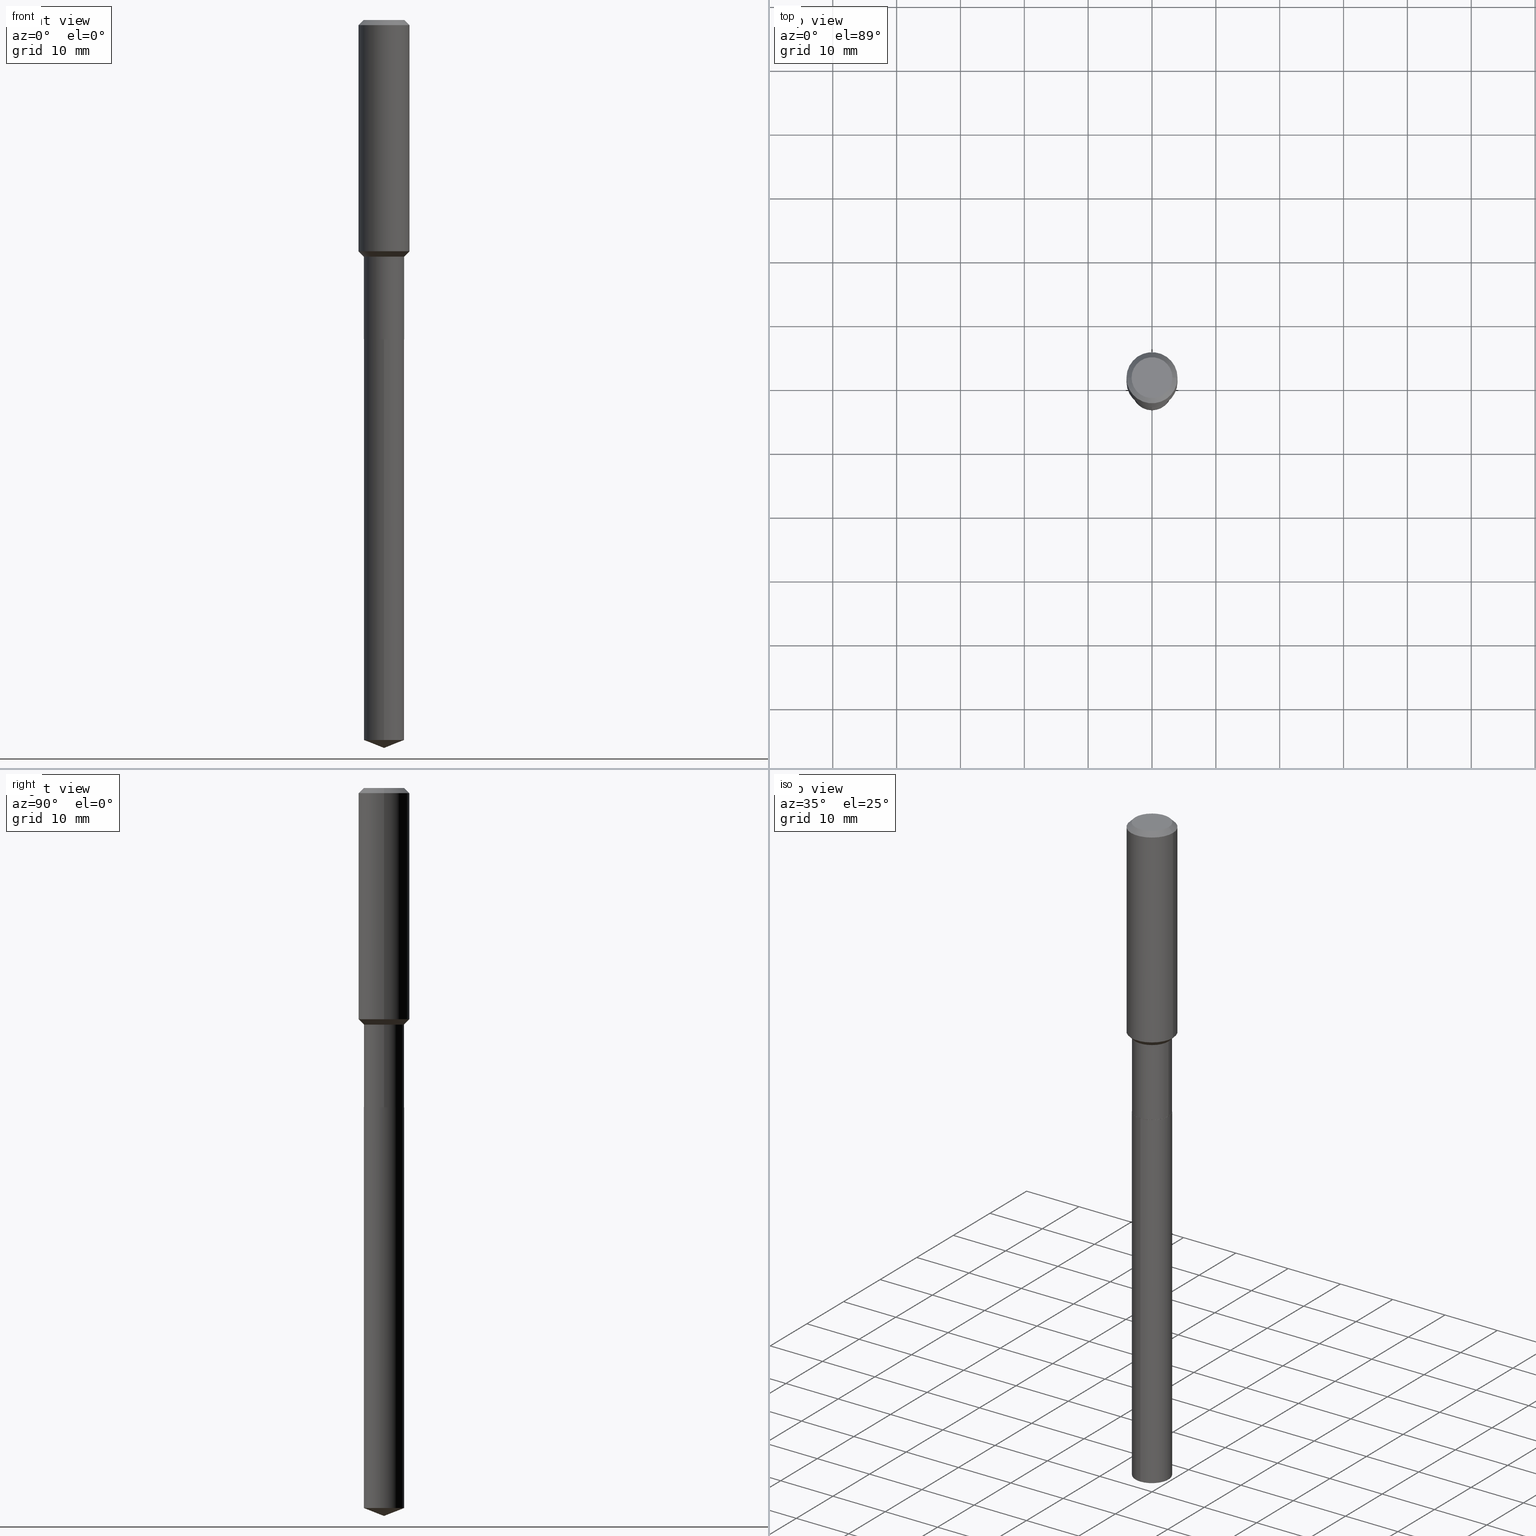
[diagram: canonical four-view strip — front | top / right | iso, engineering-drawing reading convention]
A machine part, canonical four-view strip (front | top / right | iso — engineering-drawing reading convention). The complete STEP part file that produces these views, byte-faithful:
ISO-10303-21;
HEADER;
FILE_DESCRIPTION (( 'STEP AP203' ),
    '1' );
FILE_NAME ('66639.STEP',
    '2024-04-25T02:36:24',
    ( '' ),
    ( '' ),
    'SwSTEP 2.0',
    'SolidWorks 2023',
    '' );
FILE_SCHEMA (( 'CONFIG_CONTROL_DESIGN' ));
ENDSEC;

DATA;
#1 = ORIENTED_EDGE ( 'NONE', *, *, #284, .F. ) ;
#2 = ORIENTED_EDGE ( 'NONE', *, *, #482, .T. ) ;
#3 = ORIENTED_EDGE ( 'NONE', *, *, #95, .F. ) ;
#4 = APPROVAL ( #422, 'UNSPECIFIED' ) ;
#5 = FACE_OUTER_BOUND ( 'NONE', #340, .T. ) ;
#6 = APPROVAL_PERSON_ORGANIZATION ( #461, #312, #383 ) ;
#7 = CARTESIAN_POINT ( 'NONE',  ( 0.1239999999999999991, -7.737122646876408317E-15, -1.968000000000000194 ) ) ;
#8 = DESIGN_CONTEXT ( 'detailed design', #354, 'design' ) ;
#9 = AXIS2_PLACEMENT_3D ( 'NONE', #43, #272, #190 ) ;
#10 = VERTEX_POINT ( 'NONE', #204 ) ;
#11 = DIRECTION ( 'NONE',  ( 1.000000000000000000, -6.982962677686267499E-15, 0.000000000000000000 ) ) ;
#12 = PLANE ( 'NONE',  #121 ) ;
#13 = PERSON_AND_ORGANIZATION_ROLE ( 'design_supplier' ) ;
#14 = CARTESIAN_POINT ( 'NONE',  ( 7.703226739483228723E-31, -1.099816621735597661E-16, -0.03150000000000019451 ) ) ;
#15 =( CONVERSION_BASED_UNIT ( 'INCH', #209 ) LENGTH_UNIT ( ) NAMED_UNIT ( #425 ) );
#16 = AXIS2_PLACEMENT_3D ( 'NONE', #485, #366, #480 ) ;
#17 = FACE_OUTER_BOUND ( 'NONE', #155, .T. ) ;
#18 = CONICAL_SURFACE ( 'NONE', #456, 0.1239999999999999297, 0.7853981633974508325 ) ;
#19 = FACE_OUTER_BOUND ( 'NONE', #246, .T. ) ;
#20 = EDGE_CURVE ( 'NONE', #443, #221, #210, .T. ) ;
#21 = APPLICATION_PROTOCOL_DEFINITION ( 'international standard', 'config_control_design', 1994, #454 ) ;
#22 = DIRECTION ( 'NONE',  ( 1.000000000000000000, -6.982962677686265922E-15, 0.000000000000000000 ) ) ;
#23 = EDGE_CURVE ( 'NONE', #74, #207, #115, .T. ) ;
#24 = CARTESIAN_POINT ( 'NONE',  ( 3.485771236336294004E-29, -4.976757500387020378E-15, -1.425400000000000000 ) ) ;
#25 = CARTESIAN_POINT ( 'NONE',  ( -8.529991786413033970E-28, 1.217931928410080037E-13, 34.88187874015748235 ) ) ;
#26 = VECTOR ( 'NONE', #324, 39.37007874015748143 ) ;
#27 = LOCAL_TIME ( 22, 36, 24.00000000000000000, #199 ) ;
#28 = CC_DESIGN_SECURITY_CLASSIFICATION ( #46, ( #93 ) ) ;
#29 = DIRECTION ( 'NONE',  ( 1.000000000000000000, -6.982962677686267499E-15, 0.000000000000000000 ) ) ;
#30 = CARTESIAN_POINT ( 'NONE',  ( 1.085612817581790466E-28, -1.550017788218010837E-14, -4.439355101023747530 ) ) ;
#31 = ORIENTED_EDGE ( 'NONE', *, *, #20, .T. ) ;
#32 = ORIENTED_EDGE ( 'NONE', *, *, #298, .T. ) ;
#33 = COORDINATED_UNIVERSAL_TIME_OFFSET ( 5, 0, .BEHIND. ) ;
#34 = DIRECTION ( 'NONE',  ( -2.445468806185136597E-29, 3.491481338843145583E-15, 1.000000000000000000 ) ) ;
#35 = ORIENTED_EDGE ( 'NONE', *, *, #460, .F. ) ;
#36 = CARTESIAN_POINT ( 'NONE',  ( -4.719860820353100843E-47, 6.738710358733633822E-33, 1.930043355456229866E-18 ) ) ;
#37 = CONICAL_SURFACE ( 'NONE', #122, 0.1575000000000000011, 0.7853981633974449483 ) ;
#38 = VERTEX_POINT ( 'NONE', #380 ) ;
#39 = CIRCLE ( 'NONE', #322, 0.1239999999999999297 ) ;
#40 = EDGE_CURVE ( 'NONE', #367, #368, #386, .T. ) ;
#41 = ORIENTED_EDGE ( 'NONE', *, *, #390, .T. ) ;
#42 = ORIENTED_EDGE ( 'NONE', *, *, #57, .T. ) ;
#43 = CARTESIAN_POINT ( 'NONE',  ( 3.567694441343496008E-29, -5.093722125238265850E-15, -1.458900000000000086 ) ) ;
#44 = FACE_OUTER_BOUND ( 'NONE', #187, .T. ) ;
#45 = AXIS2_PLACEMENT_3D ( 'NONE', #80, #278, #423 ) ;
#46 = SECURITY_CLASSIFICATION ( '', '', #429 ) ;
#47 = DIRECTION ( 'NONE',  ( -1.000000000000000000, 6.982962677686265922E-15, -4.876176775795935793E-29 ) ) ;
#48 = DATE_TIME_ROLE ( 'classification_date' ) ;
#49 = ADVANCED_FACE ( 'NONE', ( #17 ), #54, .T. ) ;
#50 = ADVANCED_FACE ( 'NONE', ( #44 ), #99, .T. ) ;
#51 = DIRECTION ( 'NONE',  ( -2.445397477310179660E-29, 3.491583485851871163E-15, 1.000000000000000000 ) ) ;
#52 = CIRCLE ( 'NONE', #282, 0.1239999999999999991 ) ;
#53 = DIRECTION ( 'NONE',  ( -2.445397477310179660E-29, 3.491583485851871163E-15, 1.000000000000000000 ) ) ;
#54 = CYLINDRICAL_SURFACE ( 'NONE', #307, 0.1239999999999999991 ) ;
#55 = ADVANCED_FACE ( 'NONE', ( #5 ), #12, .F. ) ;
#56 = ORIENTED_EDGE ( 'NONE', *, *, #388, .T. ) ;
#57 = EDGE_CURVE ( 'NONE', #74, #367, #392, .T. ) ;
#58 = DIRECTION ( 'NONE',  ( -6.982962677686265922E-15, -1.000000000000000000, 4.406206441393973340E-15 ) ) ;
#59 = LOCAL_TIME ( 22, 36, 24.00000000000000000, #201 ) ;
#60 = LINE ( 'NONE', #484, #178 ) ;
#61 = CARTESIAN_POINT ( 'NONE',  ( 4.813905344975441835E-29, -6.872981015512731707E-15, -1.968500000000000139 ) ) ;
#62 = ADVANCED_FACE ( 'NONE', ( #208 ), #463, .T. ) ;
#63 = LINE ( 'NONE', #323, #238 ) ;
#64 = CARTESIAN_POINT ( 'NONE',  ( 4.813905344975441835E-29, -6.872981015512731707E-15, -1.968500000000000139 ) ) ;
#65 = ORIENTED_EDGE ( 'NONE', *, *, #404, .F. ) ;
#66 = FACE_OUTER_BOUND ( 'NONE', #98, .T. ) ;
#67 = CIRCLE ( 'NONE', #488, 0.1234999999999999987 ) ;
#68 = PERSON_AND_ORGANIZATION_ROLE ( 'design_owner' ) ;
#69 = DIRECTION ( 'NONE',  ( 1.000000000000000000, -6.982962677686266711E-15, 0.000000000000000000 ) ) ;
#70 = EDGE_CURVE ( 'NONE', #147, #457, #313, .T. ) ;
#71 = ORIENTED_EDGE ( 'NONE', *, *, #428, .T. ) ;
#72 = EDGE_CURVE ( 'NONE', #207, #74, #67, .T. ) ;
#73 = ORIENTED_EDGE ( 'NONE', *, *, #23, .F. ) ;
#74 = VERTEX_POINT ( 'NONE', #274 ) ;
#75 = AXIS2_PLACEMENT_3D ( 'NONE', #258, #34, #362 ) ;
#76 = CIRCLE ( 'NONE', #448, 0.1575000000000001676 ) ;
#77 = ORIENTED_EDGE ( 'NONE', *, *, #40, .F. ) ;
#78 = ORIENTED_EDGE ( 'NONE', *, *, #57, .F. ) ;
#79 = CYLINDRICAL_SURFACE ( 'NONE', #432, 0.1575000000000000844 ) ;
#80 = CARTESIAN_POINT ( 'NONE',  ( 4.812682610572349594E-29, -6.871235274843310993E-15, -1.968000000000000194 ) ) ;
#81 = VERTEX_POINT ( 'NONE', #163 ) ;
#82 = EDGE_CURVE ( 'NONE', #457, #147, #343, .T. ) ;
#83 = CC_DESIGN_PERSON_AND_ORGANIZATION_ASSIGNMENT ( #280, #129, ( #93 ) ) ;
#84 = APPROVAL_STATUS ( 'not_yet_approved' ) ;
#85 = CARTESIAN_POINT ( 'NONE',  ( 0.000000000000000000, 0.000000000000000000, 0.000000000000000000 ) ) ;
#86 = CIRCLE ( 'NONE', #45, 0.1239999999999999991 ) ;
#87 = AXIS2_PLACEMENT_3D ( 'NONE', #249, #254, #290 ) ;
#88 = PRODUCT_DEFINITION ( 'UNKNOWN', '', #93, #8 ) ;
#89 = FACE_OUTER_BOUND ( 'NONE', #415, .T. ) ;
#90 = CARTESIAN_POINT ( 'NONE',  ( 3.567694441343496008E-29, -5.093722125238265850E-15, -1.458900000000000086 ) ) ;
#91 = PERSON_AND_ORGANIZATION_ROLE ( 'classification_officer' ) ;
#92 = CC_DESIGN_DATE_AND_TIME_ASSIGNMENT ( #205, #48, ( #46 ) ) ;
#93 = PRODUCT_DEFINITION_FORMATION_WITH_SPECIFIED_SOURCE ( 'ANY', '', #131, .NOT_KNOWN. ) ;
#94 = DIRECTION ( 'NONE',  ( 1.000000000000000000, -6.982962677686265922E-15, 4.876281427513067258E-29 ) ) ;
#95 = EDGE_CURVE ( 'NONE', #367, #112, #86, .T. ) ;
#96 = DIRECTION ( 'NONE',  ( 1.000000000000000000, -6.982962677686265922E-15, 0.000000000000000000 ) ) ;
#97 = DIRECTION ( 'NONE',  ( -2.445468806185136877E-29, 3.491481338843145188E-15, 1.000000000000000000 ) ) ;
#98 = EDGE_LOOP ( 'NONE', ( #341, #144, #486, #110 ) ) ;
#99 = CONICAL_SURFACE ( 'NONE', #200, 0.1239999999999999297, 0.7853981633974508325 ) ;
#100 = CIRCLE ( 'NONE', #478, 0.1575000000000000011 ) ;
#101 = DIRECTION ( 'NONE',  ( -2.445397477310179660E-29, 3.491583485851871163E-15, 1.000000000000000000 ) ) ;
#102 = CC_DESIGN_PERSON_AND_ORGANIZATION_ASSIGNMENT ( #166, #13, ( #93 ) ) ;
#103 = LINE ( 'NONE', #250, #168 ) ;
#104 = FACE_OUTER_BOUND ( 'NONE', #156, .T. ) ;
#105 = DIRECTION ( 'NONE',  ( -2.445468806185136597E-29, 3.491481338843145583E-15, 1.000000000000000000 ) ) ;
#106 = ORIENTED_EDGE ( 'NONE', *, *, #427, .T. ) ;
#107 = DIRECTION ( 'NONE',  ( -2.445468806185136877E-29, 3.491481338843145188E-15, 1.000000000000000000 ) ) ;
#108 = CARTESIAN_POINT ( 'NONE',  ( 3.567694441343496008E-29, -5.093722125238265850E-15, -1.458900000000000086 ) ) ;
#109 = LOCAL_TIME ( 22, 36, 24.00000000000000000, #352 ) ;
#110 = ORIENTED_EDGE ( 'NONE', *, *, #268, .F. ) ;
#111 = ADVANCED_FACE ( 'NONE', ( #89 ), #124, .T. ) ;
#112 = VERTEX_POINT ( 'NONE', #426 ) ;
#113 = ORIENTED_EDGE ( 'NONE', *, *, #72, .F. ) ;
#114 = MECHANICAL_CONTEXT ( 'NONE', #454, 'mechanical' ) ;
#115 = CIRCLE ( 'NONE', #251, 0.1234999999999999987 ) ;
#116 = ORIENTED_EDGE ( 'NONE', *, *, #390, .F. ) ;
#117 = ORIENTED_EDGE ( 'NONE', *, *, #403, .T. ) ;
#118 = DATE_AND_TIME ( #450, #219 ) ;
#119 = DIRECTION ( 'NONE',  ( 1.000000000000000000, -6.982962677686265922E-15, 4.876281427513067258E-29 ) ) ;
#120 = ADVANCED_FACE ( 'NONE', ( #393 ), #262, .T. ) ;
#121 = AXIS2_PLACEMENT_3D ( 'NONE', #198, #315, #158 ) ;
#122 = AXIS2_PLACEMENT_3D ( 'NONE', #361, #326, #336 ) ;
#123 = DIRECTION ( 'NONE',  ( -0.7071067811865493491, 7.493145998870360471E-15, 0.7071067811865457964 ) ) ;
#124 = CYLINDRICAL_SURFACE ( 'NONE', #130, 0.1239999999999999575 ) ;
#125 = PERSON_AND_ORGANIZATION ( #430, #243 ) ;
#126 = LINE ( 'NONE', #134, #350 ) ;
#127 = DIRECTION ( 'NONE',  ( -2.445468806185136597E-29, 3.491481338843145583E-15, 1.000000000000000000 ) ) ;
#128 = EDGE_CURVE ( 'NONE', #181, #10, #183, .T. ) ;
#129 = PERSON_AND_ORGANIZATION_ROLE ( 'creator' ) ;
#130 = AXIS2_PLACEMENT_3D ( 'NONE', #279, #283, #467 ) ;
#131 = PRODUCT ( '66639', '66639', '', ( #114 ) ) ;
#132 = AXIS2_PLACEMENT_3D ( 'NONE', #61, #214, #22 ) ;
#133 = CARTESIAN_POINT ( 'NONE',  ( 4.813905344975441835E-29, -6.872981015512731707E-15, -1.968500000000000139 ) ) ;
#134 = CARTESIAN_POINT ( 'NONE',  ( 1.059404549109931292E-28, -1.621709356054687186E-14, -4.488199999999999079 ) ) ;
#135 = DIRECTION ( 'NONE',  ( -2.445397477310179660E-29, 3.491583485851871163E-15, 1.000000000000000000 ) ) ;
#136 = EDGE_CURVE ( 'NONE', #147, #10, #103, .T. ) ;
#137 = CYLINDRICAL_SURFACE ( 'NONE', #150, 0.1239999999999999575 ) ;
#138 = FACE_OUTER_BOUND ( 'NONE', #270, .T. ) ;
#139 = CARTESIAN_POINT ( 'NONE',  ( -0.1239999999999999297, -5.101405707698264197E-15, -1.458900000000000086 ) ) ;
#140 = DIRECTION ( 'NONE',  ( -0.7071067811865451302, 2.468850131082231817E-15, -0.7071067811865499042 ) ) ;
#141 = PLANE ( 'NONE',  #16 ) ;
#142 = ADVANCED_BREP_SHAPE_REPRESENTATION ( '66639', ( #398, #239, #420 ), #407 ) ;
#143 = ORIENTED_EDGE ( 'NONE', *, *, #471, .T. ) ;
#144 = ORIENTED_EDGE ( 'NONE', *, *, #284, .T. ) ;
#145 = DIRECTION ( 'NONE',  ( -2.445397477310179660E-29, 3.491583485851871163E-15, 1.000000000000000000 ) ) ;
#146 = DIRECTION ( 'NONE',  ( -2.445468806185136597E-29, 3.491481338843145583E-15, 1.000000000000000000 ) ) ;
#147 = VERTEX_POINT ( 'NONE', #394 ) ;
#148 = ADVANCED_FACE ( 'NONE', ( #220 ), #437, .T. ) ;
#149 = CIRCLE ( 'NONE', #228, 0.1239999999999999991 ) ;
#150 = AXIS2_PLACEMENT_3D ( 'NONE', #405, #146, #294 ) ;
#151 = ORIENTED_EDGE ( 'NONE', *, *, #82, .T. ) ;
#152 = ORIENTED_EDGE ( 'NONE', *, *, #70, .F. ) ;
#153 = EDGE_LOOP ( 'NONE', ( #152, #402, #483, #449 ) ) ;
#154 = VERTEX_POINT ( 'NONE', #260 ) ;
#155 = EDGE_LOOP ( 'NONE', ( #196, #412, #106, #338 ) ) ;
#156 = EDGE_LOOP ( 'NONE', ( #339, #455, #375, #335 ) ) ;
#157 = AXIS2_PLACEMENT_3D ( 'NONE', #175, #328, #477 ) ;
#158 = DIRECTION ( 'NONE',  ( 1.000000000000000000, -6.982962677686265922E-15, 4.876176775795935793E-29 ) ) ;
#159 = CARTESIAN_POINT ( 'NONE',  ( 0.1239999999999999297, -5.959609497271362386E-15, -1.458900000000000086 ) ) ;
#160 = VECTOR ( 'NONE', #436, 39.37007874015748143 ) ;
#161 = AXIS2_PLACEMENT_3D ( 'NONE', #255, #135, #445 ) ;
#162 = EDGE_CURVE ( 'NONE', #81, #38, #149, .T. ) ;
#163 = CARTESIAN_POINT ( 'NONE',  ( -8.658873720330487110E-16, -0.1240000000000068825, -1.968499999999999472 ) ) ;
#164 = PERSON_AND_ORGANIZATION ( #430, #243 ) ;
#165 = DIRECTION ( 'NONE',  ( -2.445468806185136597E-29, 3.491481338843145583E-15, 1.000000000000000000 ) ) ;
#166 = PERSON_AND_ORGANIZATION ( #430, #243 ) ;
#167 = DIRECTION ( 'NONE',  ( 2.445468806185136597E-29, -3.491481338843145583E-15, -1.000000000000000000 ) ) ;
#168 = VECTOR ( 'NONE', #435, 39.37007874015748143 ) ;
#169 = AXIS2_PLACEMENT_3D ( 'NONE', #186, #105, #475 ) ;
#170 =( NAMED_UNIT ( * ) PLANE_ANGLE_UNIT ( ) SI_UNIT ( $, .RADIAN. ) );
#171 = CARTESIAN_POINT ( 'NONE',  ( 4.813905344975440714E-29, -6.872981015512730918E-15, -1.968499999999999694 ) ) ;
#172 = LINE ( 'NONE', #434, #329 ) ;
#173 = DIRECTION ( 'NONE',  ( -6.982962677686265922E-15, -1.000000000000000000, 4.406206441393973340E-15 ) ) ;
#174 = CARTESIAN_POINT ( 'NONE',  ( 0.000000000000000000, 0.000000000000000000, 0.000000000000000000 ) ) ;
#175 = CARTESIAN_POINT ( 'NONE',  ( 4.812682610572349594E-29, -6.871235274843310993E-15, -1.968000000000000194 ) ) ;
#176 = CLOSED_SHELL ( 'NONE', ( #481, #245, #382, #50, #111, #256, #424, #211, #62, #347, #55, #276 ) ) ;
#177 = CARTESIAN_POINT ( 'NONE',  ( -0.1239999999999999575, 8.810729923425239283E-16, -6.099479511916081045E-30 ) ) ;
#178 = VECTOR ( 'NONE', #140, 39.37007874015748143 ) ;
#179 = FACE_OUTER_BOUND ( 'NONE', #292, .T. ) ;
#180 = CC_DESIGN_PERSON_AND_ORGANIZATION_ASSIGNMENT ( #188, #68, ( #131 ) ) ;
#181 = VERTEX_POINT ( 'NONE', #285 ) ;
#182 = DIRECTION ( 'NONE',  ( -0.7071067811866199593, 7.493145998870616062E-15, 0.7071067811864750752 ) ) ;
#183 = LINE ( 'NONE', #286, #160 ) ;
#184 = ADVANCED_FACE ( 'NONE', ( #360 ), #216, .T. ) ;
#185 = VERTEX_POINT ( 'NONE', #289 ) ;
#186 = CARTESIAN_POINT ( 'NONE',  ( 7.703226739483228723E-31, -1.099816621735597661E-16, -0.03150000000000019451 ) ) ;
#187 = EDGE_LOOP ( 'NONE', ( #194, #56, #116, #65 ) ) ;
#188 = PERSON_AND_ORGANIZATION ( #430, #243 ) ;
#189 = AXIS2_PLACEMENT_3D ( 'NONE', #241, #53, #281 ) ;
#190 = DIRECTION ( 'NONE',  ( 1.000000000000000000, -6.982962677686266711E-15, 0.000000000000000000 ) ) ;
#191 = VECTOR ( 'NONE', #310, 39.37007874015748143 ) ;
#192 = ORIENTED_EDGE ( 'NONE', *, *, #72, .T. ) ;
#193 = ADVANCED_FACE ( 'NONE', ( #179 ), #141, .F. ) ;
#194 = ORIENTED_EDGE ( 'NONE', *, *, #371, .T. ) ;
#195 = APPROVAL ( #487, 'UNSPECIFIED' ) ;
#196 = ORIENTED_EDGE ( 'NONE', *, *, #320, .F. ) ;
#197 = EDGE_LOOP ( 'NONE', ( #231, #31, #351 ) ) ;
#198 = CARTESIAN_POINT ( 'NONE',  ( -1.267370573314747964E-29, -1.558171425523435455E-14, -1.968499999999999694 ) ) ;
#199 = COORDINATED_UNIVERSAL_TIME_OFFSET ( 5, 0, .BEHIND. ) ;
#200 = AXIS2_PLACEMENT_3D ( 'NONE', #90, #387, #349 ) ;
#201 = COORDINATED_UNIVERSAL_TIME_OFFSET ( 5, 0, .BEHIND. ) ;
#202 = APPROVAL_DATE_TIME ( #468, #4 ) ;
#203 = CALENDAR_DATE ( 2024, 24, 4 ) ;
#204 = CARTESIAN_POINT ( 'NONE',  ( 0.1575000000000000011, -1.209798283909146741E-15, -0.03150000000000019451 ) ) ;
#205 = DATE_AND_TIME ( #203, #109 ) ;
#206 = DIRECTION ( 'NONE',  ( -2.445468806185136597E-29, 3.491481338843145583E-15, 1.000000000000000000 ) ) ;
#207 = VERTEX_POINT ( 'NONE', #331 ) ;
#208 = FACE_OUTER_BOUND ( 'NONE', #332, .T. ) ;
#209 = LENGTH_MEASURE_WITH_UNIT ( LENGTH_MEASURE( 0.02539999999999999897 ), #264 );
#210 = LINE ( 'NONE', #416, #242 ) ;
#211 = ADVANCED_FACE ( 'NONE', ( #19 ), #439, .T. ) ;
#212 = CIRCLE ( 'NONE', #252, 0.1575000000000001676 ) ;
#213 = DIRECTION ( 'NONE',  ( -2.445397477310179660E-29, 3.491583485851871163E-15, 1.000000000000000000 ) ) ;
#214 = DIRECTION ( 'NONE',  ( -2.445468806185136597E-29, 3.491481338843145583E-15, 1.000000000000000000 ) ) ;
#215 = DIRECTION ( 'NONE',  ( 1.000000000000000000, -6.982962677686266711E-15, 0.000000000000000000 ) ) ;
#216 = CYLINDRICAL_SURFACE ( 'NONE', #296, 0.1239999999999999991 ) ;
#217 = ORIENTED_EDGE ( 'NONE', *, *, #128, .F. ) ;
#218 = DIRECTION ( 'NONE',  ( -6.497071151882130091E-15, -0.9304175679820261280, 0.3665012267242928612 ) ) ;
#219 = LOCAL_TIME ( 22, 36, 24.00000000000000000, #33 ) ;
#220 = FACE_OUTER_BOUND ( 'NONE', #447, .T. ) ;
#221 = VERTEX_POINT ( 'NONE', #291 ) ;
#222 = APPLICATION_PROTOCOL_DEFINITION ( 'international standard', 'config_control_design', 1994, #354 ) ;
#223 = FACE_OUTER_BOUND ( 'NONE', #490, .T. ) ;
#224 = DATE_AND_TIME ( #411, #27 ) ;
#225 = CC_DESIGN_PERSON_AND_ORGANIZATION_ASSIGNMENT ( #164, #91, ( #46 ) ) ;
#226 = ORIENTED_EDGE ( 'NONE', *, *, #82, .F. ) ;
#227 = ORIENTED_EDGE ( 'NONE', *, *, #70, .T. ) ;
#228 = AXIS2_PLACEMENT_3D ( 'NONE', #64, #101, #58 ) ;
#229 = CARTESIAN_POINT ( 'NONE',  ( 7.703226739483228723E-31, -1.099816621735597661E-16, -0.03150000000000019451 ) ) ;
#230 = CONICAL_SURFACE ( 'NONE', #132, 0.1234999999999999987, 0.7853981633975507526 ) ;
#231 = ORIENTED_EDGE ( 'NONE', *, *, #403, .F. ) ;
#232 = ORIENTED_EDGE ( 'NONE', *, *, #298, .F. ) ;
#233 = APPROVAL_DATE_TIME ( #118, #195 ) ;
#234 = EDGE_CURVE ( 'NONE', #221, #363, #287, .T. ) ;
#235 = FACE_OUTER_BOUND ( 'NONE', #377, .T. ) ;
#236 = APPROVAL_DATE_TIME ( #346, #312 ) ;
#237 = AXIS2_PLACEMENT_3D ( 'NONE', #14, #167, #473 ) ;
#238 = VECTOR ( 'NONE', #440, 39.37007874015748143 ) ;
#239 = MANIFOLD_SOLID_BREP ( 'Body-Move/Copy2[2]', #176 ) ;
#240 = ORIENTED_EDGE ( 'NONE', *, *, #459, .T. ) ;
#241 = CARTESIAN_POINT ( 'NONE',  ( -8.529991786413033970E-28, 1.217931928410080037E-13, 34.88187874015748235 ) ) ;
#242 = VECTOR ( 'NONE', #433, 39.37007874015748143 ) ;
#243 = ORGANIZATION ( 'UNSPECIFIED', 'UNSPECIFIED', '' ) ;
#244 = CALENDAR_DATE ( 2024, 24, 4 ) ;
#245 = ADVANCED_FACE ( 'NONE', ( #334 ), #37, .T. ) ;
#246 = EDGE_LOOP ( 'NONE', ( #35, #71, #295, #232 ) ) ;
#247 = EDGE_CURVE ( 'NONE', #10, #154, #358, .T. ) ;
#248 = CARTESIAN_POINT ( 'NONE',  ( 0.1234999999999999987, -7.735376906206986025E-15, -1.968500000000000139 ) ) ;
#249 = CARTESIAN_POINT ( 'NONE',  ( 4.813905344975441835E-29, -6.872981015512731707E-15, -1.968500000000000139 ) ) ;
#250 = CARTESIAN_POINT ( 'NONE',  ( 0.1575000000000000011, -1.190510096822576026E-15, -0.03150000000000019451 ) ) ;
#251 = AXIS2_PLACEMENT_3D ( 'NONE', #342, #127, #96 ) ;
#252 = AXIS2_PLACEMENT_3D ( 'NONE', #24, #325, #29 ) ;
#253 = VECTOR ( 'NONE', #123, 39.37007874015748143 ) ;
#254 = DIRECTION ( 'NONE',  ( -2.445468806185136597E-29, 3.491481338843145583E-15, 1.000000000000000000 ) ) ;
#255 = CARTESIAN_POINT ( 'NONE',  ( 4.813905344975441835E-29, -6.872981015512731707E-15, -1.968500000000000139 ) ) ;
#256 = ADVANCED_FACE ( 'NONE', ( #66 ), #137, .T. ) ;
#257 = DIRECTION ( 'NONE',  ( -2.445468806185136597E-29, 3.491481338843145583E-15, 1.000000000000000000 ) ) ;
#258 = CARTESIAN_POINT ( 'NONE',  ( 0.000000000000000000, 0.000000000000000000, 0.000000000000000000 ) ) ;
#259 = EDGE_CURVE ( 'NONE', #38, #81, #438, .T. ) ;
#260 = CARTESIAN_POINT ( 'NONE',  ( -0.1575000000000000011, -1.424264772458131328E-15, -0.03150000000000019451 ) ) ;
#261 = ORIENTED_EDGE ( 'NONE', *, *, #460, .T. ) ;
#262 = CONICAL_SURFACE ( 'NONE', #189, 99.94676754584128275, 1.195550537616123954 ) ;
#263 = ORIENTED_EDGE ( 'NONE', *, *, #136, .F. ) ;
#264 =( LENGTH_UNIT ( ) NAMED_UNIT ( * ) SI_UNIT ( $, .METRE. ) );
#265 = DIRECTION ( 'NONE',  ( -2.445468806185136597E-29, 3.491481338843145583E-15, 1.000000000000000000 ) ) ;
#266 = PERSON_AND_ORGANIZATION ( #430, #243 ) ;
#267 = LINE ( 'NONE', #305, #191 ) ;
#268 = EDGE_CURVE ( 'NONE', #293, #368, #39, .T. ) ;
#269 = ORIENTED_EDGE ( 'NONE', *, *, #20, .F. ) ;
#270 = EDGE_LOOP ( 'NONE', ( #442, #431, #3, #78 ) ) ;
#271 = PERSON_AND_ORGANIZATION ( #430, #243 ) ;
#272 = DIRECTION ( 'NONE',  ( -2.445468806185136597E-29, 3.491481338843145583E-15, 1.000000000000000000 ) ) ;
#273 = CONICAL_SURFACE ( 'NONE', #87, 0.1234999999999999987, 0.7853981633975507526 ) ;
#274 = CARTESIAN_POINT ( 'NONE',  ( 0.1234999999999999987, -7.735376906206986025E-15, -1.968500000000000139 ) ) ;
#275 = EDGE_LOOP ( 'NONE', ( #41, #261, #410, #217 ) ) ;
#276 = ADVANCED_FACE ( 'NONE', ( #223 ), #230, .T. ) ;
#277 = APPROVAL_PERSON_ORGANIZATION ( #125, #4, #317 ) ;
#278 = DIRECTION ( 'NONE',  ( -2.445468806185136597E-29, 3.491481338843145583E-15, 1.000000000000000000 ) ) ;
#279 = CARTESIAN_POINT ( 'NONE',  ( 0.000000000000000000, 0.000000000000000000, 0.000000000000000000 ) ) ;
#280 = PERSON_AND_ORGANIZATION ( #430, #243 ) ;
#281 = DIRECTION ( 'NONE',  ( -6.982962677686265922E-15, -1.000000000000000000, 3.498627837349958469E-15 ) ) ;
#282 = AXIS2_PLACEMENT_3D ( 'NONE', #330, #145, #333 ) ;
#283 = DIRECTION ( 'NONE',  ( -2.445468806185136597E-29, 3.491481338843145583E-15, 1.000000000000000000 ) ) ;
#284 = EDGE_CURVE ( 'NONE', #112, #367, #314, .T. ) ;
#285 = CARTESIAN_POINT ( 'NONE',  ( 0.1575000000000001676, -6.076574122122608647E-15, -1.425400000000000000 ) ) ;
#286 = CARTESIAN_POINT ( 'NONE',  ( 0.1575000000000000844, -1.099816621735587677E-15, 7.679978421878603638E-30 ) ) ;
#287 = CIRCLE ( 'NONE', #413, 0.1239999999999999991 ) ;
#288 = LINE ( 'NONE', #177, #397 ) ;
#289 = CARTESIAN_POINT ( 'NONE',  ( -0.1575000000000001676, -3.857652691564860408E-15, -1.425400000000000000 ) ) ;
#290 = DIRECTION ( 'NONE',  ( 1.000000000000000000, -6.982962677686265922E-15, 0.000000000000000000 ) ) ;
#291 = CARTESIAN_POINT ( 'NONE',  ( 8.810729923426329884E-16, 0.1239999999999845254, -4.439355101023748418 ) ) ;
#292 = EDGE_LOOP ( 'NONE', ( #303, #417 ) ) ;
#293 = VERTEX_POINT ( 'NONE', #139 ) ;
#294 = DIRECTION ( 'NONE',  ( 1.000000000000000000, -6.982962677686266711E-15, 4.876176775795935793E-29 ) ) ;
#295 = ORIENTED_EDGE ( 'NONE', *, *, #128, .T. ) ;
#296 = AXIS2_PLACEMENT_3D ( 'NONE', #441, #401, #370 ) ;
#297 = ORIENTED_EDGE ( 'NONE', *, *, #162, .F. ) ;
#298 = EDGE_CURVE ( 'NONE', #154, #10, #100, .T. ) ;
#299 = VECTOR ( 'NONE', #355, 39.37007874015748143 ) ;
#300 = DIRECTION ( 'NONE',  ( 1.000000000000000000, -6.982962677686265922E-15, 0.000000000000000000 ) ) ;
#301 = EDGE_LOOP ( 'NONE', ( #2, #406, #297, #451 ) ) ;
#302 = FACE_OUTER_BOUND ( 'NONE', #275, .T. ) ;
#303 = ORIENTED_EDGE ( 'NONE', *, *, #162, .T. ) ;
#304 = ORIENTED_EDGE ( 'NONE', *, *, #234, .F. ) ;
#305 = CARTESIAN_POINT ( 'NONE',  ( 8.810729923425722461E-16, 0.1239999999999931157, -1.968500000000000361 ) ) ;
#306 = DIRECTION ( 'NONE',  ( 1.000000000000000000, 0.000000000000000000, 0.000000000000000000 ) ) ;
#307 = AXIS2_PLACEMENT_3D ( 'NONE', #171, #51, #470 ) ;
#308 = APPROVAL_PERSON_ORGANIZATION ( #271, #195, #369 ) ;
#309 = DIRECTION ( 'NONE',  ( -2.445468806185136597E-29, 3.491481338843145583E-15, 1.000000000000000000 ) ) ;
#310 = DIRECTION ( 'NONE',  ( -2.445397477310179380E-29, 3.491583485851871163E-15, 1.000000000000000000 ) ) ;
#311 = COORDINATED_UNIVERSAL_TIME_OFFSET ( 5, 0, .BEHIND. ) ;
#312 = APPROVAL ( #84, 'UNSPECIFIED' ) ;
#313 = CIRCLE ( 'NONE', #384, 0.1260000000000000009 ) ;
#314 = CIRCLE ( 'NONE', #157, 0.1239999999999999991 ) ;
#315 = DIRECTION ( 'NONE',  ( -2.438088387897960049E-29, 3.491481338843145188E-15, 1.000000000000000000 ) ) ;
#316 = DIRECTION ( 'NONE',  ( 1.000000000000000000, -6.982962677686265922E-15, 0.000000000000000000 ) ) ;
#317 = APPROVAL_ROLE ( '' ) ;
#318 = CARTESIAN_POINT ( 'NONE',  ( -0.1239999999999999297, -4.212649132895741626E-15, -1.458900000000000086 ) ) ;
#319 = CARTESIAN_POINT ( 'NONE',  ( -9.439721640706201686E-47, 1.347742071746726764E-32, 3.860086710912459732E-18 ) ) ;
#320 = EDGE_CURVE ( 'NONE', #221, #38, #267, .T. ) ;
#321 = CLOSED_SHELL ( 'NONE', ( #184, #120, #148, #49, #193 ) ) ;
#322 = AXIS2_PLACEMENT_3D ( 'NONE', #108, #265, #69 ) ;
#323 = CARTESIAN_POINT ( 'NONE',  ( 0.1239999999999999297, -5.959609497271362386E-15, -1.458900000000000086 ) ) ;
#324 = DIRECTION ( 'NONE',  ( -2.445468806185136877E-29, 3.491481338843145188E-15, 1.000000000000000000 ) ) ;
#325 = DIRECTION ( 'NONE',  ( -2.445468806185136597E-29, 3.491481338843145583E-15, 1.000000000000000000 ) ) ;
#326 = DIRECTION ( 'NONE',  ( 2.445468806185136597E-29, -3.491481338843145583E-15, -1.000000000000000000 ) ) ;
#327 = DIRECTION ( 'NONE',  ( 0.000000000000000000, 0.000000000000000000, 1.000000000000000000 ) ) ;
#328 = DIRECTION ( 'NONE',  ( -2.445468806185136597E-29, 3.491481338843145583E-15, 1.000000000000000000 ) ) ;
#329 = VECTOR ( 'NONE', #182, 39.37007874015748143 ) ;
#330 = CARTESIAN_POINT ( 'NONE',  ( 1.085612817581790466E-28, -1.550017788218010837E-14, -4.439355101023747530 ) ) ;
#331 = CARTESIAN_POINT ( 'NONE',  ( -0.1234999999999999987, -5.992811509674897969E-15, -1.968500000000000139 ) ) ;
#332 = EDGE_LOOP ( 'NONE', ( #263, #226, #240, #32 ) ) ;
#333 = DIRECTION ( 'NONE',  ( -6.982962677686265922E-15, -1.000000000000000000, 4.406206441393973340E-15 ) ) ;
#334 = FACE_OUTER_BOUND ( 'NONE', #153, .T. ) ;
#335 = ORIENTED_EDGE ( 'NONE', *, *, #428, .F. ) ;
#336 = DIRECTION ( 'NONE',  ( -1.000000000000000000, 6.982962677686265922E-15, 0.000000000000000000 ) ) ;
#337 = ORIENTED_EDGE ( 'NONE', *, *, #95, .T. ) ;
#338 = ORIENTED_EDGE ( 'NONE', *, *, #259, .F. ) ;
#339 = ORIENTED_EDGE ( 'NONE', *, *, #388, .F. ) ;
#340 = EDGE_LOOP ( 'NONE', ( #73, #113 ) ) ;
#341 = ORIENTED_EDGE ( 'NONE', *, *, #471, .F. ) ;
#342 = CARTESIAN_POINT ( 'NONE',  ( 4.813905344975441835E-29, -6.872981015512731707E-15, -1.968500000000000139 ) ) ;
#343 = CIRCLE ( 'NONE', #462, 0.1260000000000000009 ) ;
#344 = CC_DESIGN_APPROVAL ( #312, ( #93 ) ) ;
#345 = UNCERTAINTY_MEASURE_WITH_UNIT (LENGTH_MEASURE( 1.000000000000000082E-05 ), #15, 'distance_accuracy_value', 'NONE');
#346 = DATE_AND_TIME ( #244, #364 ) ;
#347 = ADVANCED_FACE ( 'NONE', ( #235 ), #378, .F. ) ;
#348 = DIRECTION ( 'NONE',  ( 1.000000000000000000, -6.982962677686267499E-15, 4.876176775795936353E-29 ) ) ;
#349 = DIRECTION ( 'NONE',  ( 1.000000000000000000, -6.982962677686266711E-15, 0.000000000000000000 ) ) ;
#350 = VECTOR ( 'NONE', #218, 39.37007874015748854 ) ;
#351 = ORIENTED_EDGE ( 'NONE', *, *, #482, .F. ) ;
#352 = COORDINATED_UNIVERSAL_TIME_OFFSET ( 5, 0, .BEHIND. ) ;
#353 = DIRECTION ( 'NONE',  ( 0.7071067811866199593, -2.468850131083015945E-15, 0.7071067811864750752 ) ) ;
#354 = APPLICATION_CONTEXT ( 'configuration controlled 3d designs of mechanical parts and assemblies' ) ;
#355 = DIRECTION ( 'NONE',  ( -2.445397477310179380E-29, 3.491583485851871163E-15, 1.000000000000000000 ) ) ;
#356 = CARTESIAN_POINT ( 'NONE',  ( 0.1239999999999999575, -8.658873720330967329E-16, 6.046459201986958533E-30 ) ) ;
#357 = PRODUCT_DEFINITION_SHAPE ( 'NONE', 'NONE',  #88 ) ;
#358 = CIRCLE ( 'NONE', #169, 0.1575000000000000011 ) ;
#359 =( NAMED_UNIT ( * ) SI_UNIT ( $, .STERADIAN. ) SOLID_ANGLE_UNIT ( ) );
#360 = FACE_OUTER_BOUND ( 'NONE', #301, .T. ) ;
#361 = CARTESIAN_POINT ( 'NONE',  ( 7.703226739483228723E-31, -1.099816621735597661E-16, -0.03150000000000019451 ) ) ;
#362 = DIRECTION ( 'NONE',  ( 1.000000000000000000, -6.982962677686267499E-15, 4.876176775795936353E-29 ) ) ;
#363 = VERTEX_POINT ( 'NONE', #374 ) ;
#364 = LOCAL_TIME ( 22, 36, 24.00000000000000000, #311 ) ;
#365 = LINE ( 'NONE', #444, #299 ) ;
#366 = DIRECTION ( 'NONE',  ( 2.445397477310179380E-29, -3.491583485851871163E-15, -1.000000000000000000 ) ) ;
#367 = VERTEX_POINT ( 'NONE', #7 ) ;
#368 = VERTEX_POINT ( 'NONE', #159 ) ;
#369 = APPROVAL_ROLE ( '' ) ;
#370 = DIRECTION ( 'NONE',  ( -6.982962677686265922E-15, -1.000000000000000000, 4.406206441393973340E-15 ) ) ;
#371 = EDGE_CURVE ( 'NONE', #368, #293, #376, .T. ) ;
#372 = ORIENTED_EDGE ( 'NONE', *, *, #408, .F. ) ;
#373 = DATE_TIME_ROLE ( 'creation_date' ) ;
#374 = CARTESIAN_POINT ( 'NONE',  ( -8.658873720329886590E-16, -0.1240000000000155284, -4.439355101023747530 ) ) ;
#375 = ORIENTED_EDGE ( 'NONE', *, *, #404, .T. ) ;
#376 = CIRCLE ( 'NONE', #9, 0.1239999999999999297 ) ;
#377 = EDGE_LOOP ( 'NONE', ( #151, #227 ) ) ;
#378 = PLANE ( 'NONE',  #385 ) ;
#379 = ORIENTED_EDGE ( 'NONE', *, *, #371, .F. ) ;
#380 = CARTESIAN_POINT ( 'NONE',  ( 8.810729923426331856E-16, 0.1239999999999931157, -1.968500000000000583 ) ) ;
#381 = PERSON_AND_ORGANIZATION_ROLE ( 'creator' ) ;
#382 = ADVANCED_FACE ( 'NONE', ( #302 ), #79, .T. ) ;
#383 = APPROVAL_ROLE ( '' ) ;
#384 = AXIS2_PLACEMENT_3D ( 'NONE', #319, #165, #94 ) ;
#385 = AXIS2_PLACEMENT_3D ( 'NONE', #36, #419, #47 ) ;
#386 = LINE ( 'NONE', #356, #26 ) ;
#387 = DIRECTION ( 'NONE',  ( -2.445468806185136597E-29, 3.491481338843145583E-15, 1.000000000000000000 ) ) ;
#388 = EDGE_CURVE ( 'NONE', #293, #185, #465, .T. ) ;
#389 = SHAPE_DEFINITION_REPRESENTATION ( #357, #142 ) ;
#390 = EDGE_CURVE ( 'NONE', #181, #185, #76, .T. ) ;
#391 = CC_DESIGN_DATE_AND_TIME_ASSIGNMENT ( #224, #373, ( #88 ) ) ;
#392 = LINE ( 'NONE', #248, #395 ) ;
#393 = FACE_OUTER_BOUND ( 'NONE', #197, .T. ) ;
#394 = CARTESIAN_POINT ( 'NONE',  ( 0.1260000000000000009, -1.027466422270894443E-15, 3.860086710919128072E-18 ) ) ;
#395 = VECTOR ( 'NONE', #353, 39.37007874015748143 ) ;
#396 = CC_DESIGN_PERSON_AND_ORGANIZATION_ASSIGNMENT ( #266, #381, ( #88 ) ) ;
#397 = VECTOR ( 'NONE', #107, 39.37007874015748143 ) ;
#398 = MANIFOLD_SOLID_BREP ( 'Body-Move/Copy2[1]', #321 ) ;
#399 = DIRECTION ( 'NONE',  ( -6.982962677686265922E-15, -1.000000000000000000, 3.498627837349958469E-15 ) ) ;
#400 = CARTESIAN_POINT ( 'NONE',  ( 3.567694441343496008E-29, -5.093722125238265850E-15, -1.458900000000000086 ) ) ;
#401 = DIRECTION ( 'NONE',  ( -2.445397477310179660E-29, 3.491583485851871163E-15, 1.000000000000000000 ) ) ;
#402 = ORIENTED_EDGE ( 'NONE', *, *, #136, .T. ) ;
#403 = EDGE_CURVE ( 'NONE', #443, #363, #126, .T. ) ;
#404 = EDGE_CURVE ( 'NONE', #368, #181, #63, .T. ) ;
#405 = CARTESIAN_POINT ( 'NONE',  ( 0.000000000000000000, 0.000000000000000000, 0.000000000000000000 ) ) ;
#406 = ORIENTED_EDGE ( 'NONE', *, *, #320, .T. ) ;
#407 =( GEOMETRIC_REPRESENTATION_CONTEXT ( 3 ) GLOBAL_UNCERTAINTY_ASSIGNED_CONTEXT ( ( #345 ) ) GLOBAL_UNIT_ASSIGNED_CONTEXT ( ( #15, #170, #359 ) ) REPRESENTATION_CONTEXT ( 'NONE', 'WORKASPACE' ) );
#408 = EDGE_CURVE ( 'NONE', #207, #112, #172, .T. ) ;
#409 = DIRECTION ( 'NONE',  ( -2.445397477310179660E-29, 3.491583485851871163E-15, 1.000000000000000000 ) ) ;
#410 = ORIENTED_EDGE ( 'NONE', *, *, #247, .F. ) ;
#411 = CALENDAR_DATE ( 2024, 24, 4 ) ;
#412 = ORIENTED_EDGE ( 'NONE', *, *, #234, .T. ) ;
#413 = AXIS2_PLACEMENT_3D ( 'NONE', #30, #409, #173 ) ;
#414 = VECTOR ( 'NONE', #97, 39.37007874015748143 ) ;
#415 = EDGE_LOOP ( 'NONE', ( #337, #143, #379, #77 ) ) ;
#416 = CARTESIAN_POINT ( 'NONE',  ( 1.136379234426400663E-28, -1.512435428908050663E-14, -4.488199999999999079 ) ) ;
#417 = ORIENTED_EDGE ( 'NONE', *, *, #259, .T. ) ;
#418 = DIRECTION ( 'NONE',  ( -2.445468806185136597E-29, 3.491481338843145583E-15, 1.000000000000000000 ) ) ;
#419 = DIRECTION ( 'NONE',  ( 2.438088387897960049E-29, -3.491481338843145188E-15, -1.000000000000000000 ) ) ;
#420 = AXIS2_PLACEMENT_3D ( 'NONE', #174, #327, #306 ) ;
#421 = CC_DESIGN_APPROVAL ( #4, ( #46 ) ) ;
#422 = APPROVAL_STATUS ( 'not_yet_approved' ) ;
#423 = DIRECTION ( 'NONE',  ( 1.000000000000000000, -6.982962677686270655E-15, 0.000000000000000000 ) ) ;
#424 = ADVANCED_FACE ( 'NONE', ( #104 ), #18, .T. ) ;
#425 = DIMENSIONAL_EXPONENTS ( 1.000000000000000000, 0.000000000000000000, 0.000000000000000000, 0.000000000000000000, 0.000000000000000000, 0.000000000000000000, 0.000000000000000000 ) ;
#426 = CARTESIAN_POINT ( 'NONE',  ( -0.1239999999999999991, -5.101405707698264197E-15, -1.968000000000000194 ) ) ;
#427 = EDGE_CURVE ( 'NONE', #363, #81, #365, .T. ) ;
#428 = EDGE_CURVE ( 'NONE', #185, #181, #212, .T. ) ;
#429 = SECURITY_CLASSIFICATION_LEVEL ( 'unclassified' ) ;
#430 = PERSON ( 'UNSPECIFIED', 'UNSPECIFIED', 'UNSPECIFIED', ('UNSPECIFIED'), ('UNSPECIFIED'), ('UNSPECIFIED') ) ;
#431 = ORIENTED_EDGE ( 'NONE', *, *, #408, .T. ) ;
#432 = AXIS2_PLACEMENT_3D ( 'NONE', #85, #452, #348 ) ;
#433 = DIRECTION ( 'NONE',  ( 6.611014441532080000E-15, 0.9304175679820287925, 0.3665012267242863664 ) ) ;
#434 = CARTESIAN_POINT ( 'NONE',  ( -0.1234999999999999987, -5.995460736849007593E-15, -1.968500000000000139 ) ) ;
#435 = DIRECTION ( 'NONE',  ( 0.7071067811865451302, -7.319954787623248157E-15, -0.7071067811865499042 ) ) ;
#436 = DIRECTION ( 'NONE',  ( -2.445468806185136877E-29, 3.491481338843145188E-15, 1.000000000000000000 ) ) ;
#437 = CONICAL_SURFACE ( 'NONE', #446, 99.94676754584128275, 1.195550537616123954 ) ;
#438 = CIRCLE ( 'NONE', #161, 0.1239999999999999991 ) ;
#439 = CYLINDRICAL_SURFACE ( 'NONE', #75, 0.1575000000000000844 ) ;
#440 = DIRECTION ( 'NONE',  ( 0.7071067811865493491, -2.468850131082275993E-15, 0.7071067811865457964 ) ) ;
#441 = CARTESIAN_POINT ( 'NONE',  ( 4.813905344975440714E-29, -6.872981015512730918E-15, -1.968499999999999694 ) ) ;
#442 = ORIENTED_EDGE ( 'NONE', *, *, #23, .T. ) ;
#443 = VERTEX_POINT ( 'NONE', #472 ) ;
#444 = CARTESIAN_POINT ( 'NONE',  ( -8.658873720330487110E-16, -0.1240000000000068825, -1.968499999999999250 ) ) ;
#445 = DIRECTION ( 'NONE',  ( -6.982962677686265922E-15, -1.000000000000000000, 4.406206441393973340E-15 ) ) ;
#446 = AXIS2_PLACEMENT_3D ( 'NONE', #25, #213, #399 ) ;
#447 = EDGE_LOOP ( 'NONE', ( #269, #117, #304 ) ) ;
#448 = AXIS2_PLACEMENT_3D ( 'NONE', #469, #206, #11 ) ;
#449 = ORIENTED_EDGE ( 'NONE', *, *, #459, .F. ) ;
#450 = CALENDAR_DATE ( 2024, 24, 4 ) ;
#451 = ORIENTED_EDGE ( 'NONE', *, *, #427, .F. ) ;
#452 = DIRECTION ( 'NONE',  ( -2.445468806185136597E-29, 3.491481338843145583E-15, 1.000000000000000000 ) ) ;
#453 = PRODUCT_RELATED_PRODUCT_CATEGORY ( 'detail', '', ( #131 ) ) ;
#454 = APPLICATION_CONTEXT ( 'configuration controlled 3d designs of mechanical parts and assemblies' ) ;
#455 = ORIENTED_EDGE ( 'NONE', *, *, #268, .T. ) ;
#456 = AXIS2_PLACEMENT_3D ( 'NONE', #400, #257, #215 ) ;
#457 = VERTEX_POINT ( 'NONE', #474 ) ;
#458 = DIRECTION ( 'NONE',  ( -2.445468806185136597E-29, 3.491481338843145583E-15, 1.000000000000000000 ) ) ;
#459 = EDGE_CURVE ( 'NONE', #457, #154, #60, .T. ) ;
#460 = EDGE_CURVE ( 'NONE', #185, #154, #476, .T. ) ;
#461 = PERSON_AND_ORGANIZATION ( #430, #243 ) ;
#462 = AXIS2_PLACEMENT_3D ( 'NONE', #466, #458, #119 ) ;
#463 = CONICAL_SURFACE ( 'NONE', #237, 0.1575000000000000011, 0.7853981633974449483 ) ;
#464 = CALENDAR_DATE ( 2024, 24, 4 ) ;
#465 = LINE ( 'NONE', #318, #253 ) ;
#466 = CARTESIAN_POINT ( 'NONE',  ( -9.439721640706201686E-47, 1.347742071746726764E-32, 3.860086710912459732E-18 ) ) ;
#467 = DIRECTION ( 'NONE',  ( 1.000000000000000000, -6.982962677686266711E-15, 4.876176775795935793E-29 ) ) ;
#468 = DATE_AND_TIME ( #464, #59 ) ;
#469 = CARTESIAN_POINT ( 'NONE',  ( 3.485771236336294004E-29, -4.976757500387020378E-15, -1.425400000000000000 ) ) ;
#470 = DIRECTION ( 'NONE',  ( -6.982962677686265922E-15, -1.000000000000000000, 4.406206441393973340E-15 ) ) ;
#471 = EDGE_CURVE ( 'NONE', #112, #293, #288, .T. ) ;
#472 = CARTESIAN_POINT ( 'NONE',  ( 1.097543295766354916E-28, -1.567092500120036717E-14, -4.488199999999999967 ) ) ;
#473 = DIRECTION ( 'NONE',  ( -1.000000000000000000, 6.982962677686265922E-15, 0.000000000000000000 ) ) ;
#474 = CARTESIAN_POINT ( 'NONE',  ( -0.1260000000000000009, 9.348441284752484904E-16, 3.860086710906114178E-18 ) ) ;
#475 = DIRECTION ( 'NONE',  ( 1.000000000000000000, -6.982962677686265922E-15, 0.000000000000000000 ) ) ;
#476 = LINE ( 'NONE', #479, #414 ) ;
#477 = DIRECTION ( 'NONE',  ( 1.000000000000000000, -6.982962677686270655E-15, 0.000000000000000000 ) ) ;
#478 = AXIS2_PLACEMENT_3D ( 'NONE', #229, #418, #300 ) ;
#479 = CARTESIAN_POINT ( 'NONE',  ( -0.1575000000000000844, 1.119104808822158392E-15, -7.747322767151481189E-30 ) ) ;
#480 = DIRECTION ( 'NONE',  ( 6.982962677686265922E-15, 1.000000000000000000, -3.491583485851871163E-15 ) ) ;
#481 = ADVANCED_FACE ( 'NONE', ( #138 ), #273, .T. ) ;
#482 = EDGE_CURVE ( 'NONE', #363, #221, #52, .T. ) ;
#483 = ORIENTED_EDGE ( 'NONE', *, *, #247, .T. ) ;
#484 = CARTESIAN_POINT ( 'NONE',  ( -0.1575000000000000011, 9.898349595620272334E-16, -0.03150000000000019451 ) ) ;
#485 = CARTESIAN_POINT ( 'NONE',  ( 1.785528022762383454E-29, -1.120978970545474944E-14, -1.968500000000000139 ) ) ;
#486 = ORIENTED_EDGE ( 'NONE', *, *, #40, .T. ) ;
#487 = APPROVAL_STATUS ( 'not_yet_approved' ) ;
#488 = AXIS2_PLACEMENT_3D ( 'NONE', #133, #309, #316 ) ;
#489 = CC_DESIGN_APPROVAL ( #195, ( #88 ) ) ;
#490 = EDGE_LOOP ( 'NONE', ( #372, #192, #42, #1 ) ) ;
ENDSEC;
END-ISO-10303-21;
